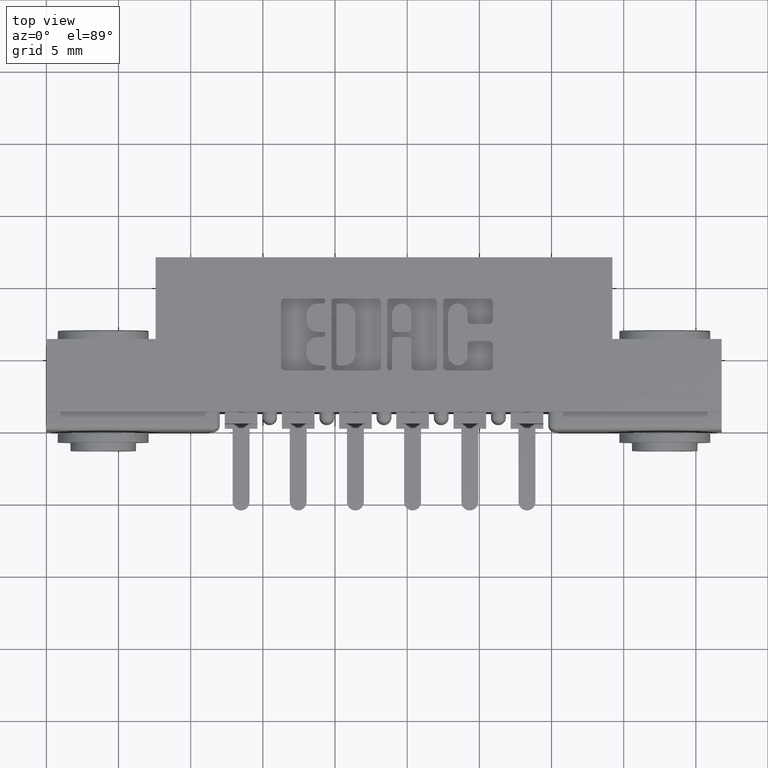
[diagram: clean part render]
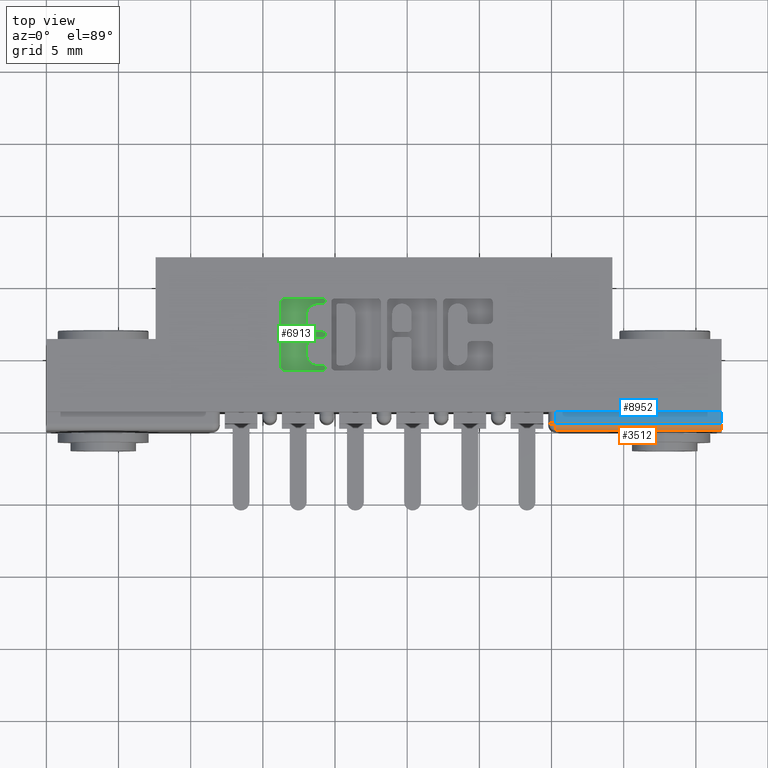
[diagram: same view with three faces highlighted in distinct colors, each labeled with its STEP entity id]
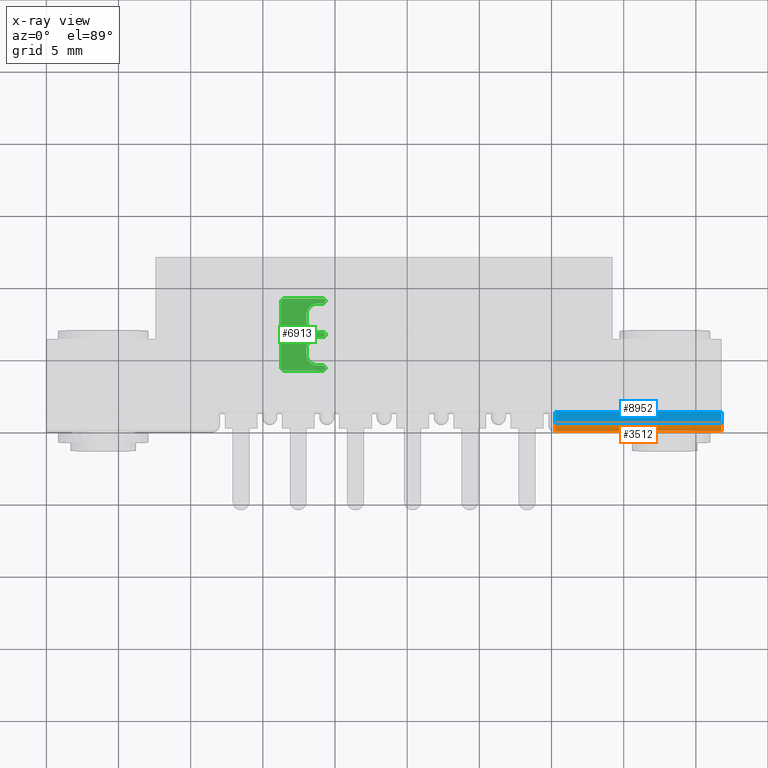
[diagram: x-ray of the same camera — body ghosted, the three highlighted faces saturated]
A machine part, top view with three faces highlighted in distinct colors.
The next image is the same camera in x-ray (body ghosted, the three faces saturated) — at least one of them is partly hidden behind the body in this view.
Their STEP definitions:

[orange] entity #3512 — the highlighted cylindrical surface (edge-blend (fillet) strip) has radius 0.508 mm, axis along (-1, 0, 0).
#127 = CARTESIAN_POINT ( 'NONE',  ( 1.842000000000000700, 0.02000000000000000000, -0.01000000000000006400 ) ) ;
#548 = VECTOR ( 'NONE', #11286, 39.37007874015748100 ) ;
#747 = EDGE_CURVE ( 'NONE', #11229, #2189, #5137, .T. ) ;
#853 = DIRECTION ( 'NONE',  ( 0.0000000000000000000, 0.0000000000000000000, 1.000000000000000000 ) ) ;
#1000 = EDGE_CURVE ( 'NONE', #2189, #2036, #9622, .T. ) ;
#1335 = ORIENTED_EDGE ( 'NONE', *, *, #747, .F. ) ;
#1402 = AXIS2_PLACEMENT_3D ( 'NONE', #7159, #5294, #7827 ) ;
#2029 = CARTESIAN_POINT ( 'NONE',  ( 1.389000000000000500, 0.0000000000000000000, -0.03000000000000008900 ) ) ;
#2036 = VERTEX_POINT ( 'NONE', #6874 ) ;
#2189 = VERTEX_POINT ( 'NONE', #127 ) ;
#2541 = CARTESIAN_POINT ( 'NONE',  ( 1.842000000000000700, 0.02000000000000000000, -0.03000000000000008900 ) ) ;
#2732 = ORIENTED_EDGE ( 'NONE', *, *, #6433, .F. ) ;
#2787 = ORIENTED_EDGE ( 'NONE', *, *, #6648, .F. ) ;
#2875 = CARTESIAN_POINT ( 'NONE',  ( 1.842000000000000700, 0.02000000000000000000, -0.01000000000000006400 ) ) ;
#2912 = LINE ( 'NONE', #4313, #548 ) ;
#3217 = VECTOR ( 'NONE', #7387, 39.37007874015748100 ) ;
#3445 = DIRECTION ( 'NONE',  ( 1.000000000000000000, -0.0000000000000000000, -0.0000000000000000000 ) ) ;
#3512 = ADVANCED_FACE ( 'NONE', ( #7361 ), #5463, .T. ) ;
#3636 = AXIS2_PLACEMENT_3D ( 'NONE', #7029, #9675, #853 ) ;
#3685 = ORIENTED_EDGE ( 'NONE', *, *, #1000, .F. ) ;
#4235 = VERTEX_POINT ( 'NONE', #2029 ) ;
#4313 = CARTESIAN_POINT ( 'NONE',  ( 0.0000000000000000000, 0.0000000000000000000, -0.03000000000000008900 ) ) ;
#4950 = EDGE_LOOP ( 'NONE', ( #3685, #1335, #2787, #2732 ) ) ;
#5137 = LINE ( 'NONE', #2875, #3217 ) ;
#5294 = DIRECTION ( 'NONE',  ( -1.000000000000000000, 0.0000000000000000000, 0.0000000000000000000 ) ) ;
#5463 = CYLINDRICAL_SURFACE ( 'NONE', #3636, 0.02000000000000000000 ) ;
#6433 = EDGE_CURVE ( 'NONE', #2036, #4235, #2912, .T. ) ;
#6613 = CIRCLE ( 'NONE', #1402, 0.02000000000000000000 ) ;
#6648 = EDGE_CURVE ( 'NONE', #4235, #11229, #6613, .T. ) ;
#6874 = CARTESIAN_POINT ( 'NONE',  ( 1.842000000000000700, 0.0000000000000000000, -0.03000000000000008900 ) ) ;
#7029 = CARTESIAN_POINT ( 'NONE',  ( 0.0000000000000000000, 0.02000000000000000000, -0.03000000000000008900 ) ) ;
#7159 = CARTESIAN_POINT ( 'NONE',  ( 1.389000000000000500, 0.02000000000000000000, -0.03000000000000008900 ) ) ;
#7361 = FACE_OUTER_BOUND ( 'NONE', #4950, .T. ) ;
#7387 = DIRECTION ( 'NONE',  ( 1.000000000000000000, -0.0000000000000000000, -0.0000000000000000000 ) ) ;
#7827 = DIRECTION ( 'NONE',  ( 0.0000000000000000000, 0.0000000000000000000, 1.000000000000000000 ) ) ;
#9423 = DIRECTION ( 'NONE',  ( 0.0000000000000000000, 0.0000000000000000000, 1.000000000000000000 ) ) ;
#9622 = CIRCLE ( 'NONE', #10492, 0.02000000000000000000 ) ;
#9634 = CARTESIAN_POINT ( 'NONE',  ( 1.389000000000000500, 0.02000000000000000000, -0.01000000000000006400 ) ) ;
#9675 = DIRECTION ( 'NONE',  ( -1.000000000000000000, 0.0000000000000000000, 0.0000000000000000000 ) ) ;
#10492 = AXIS2_PLACEMENT_3D ( 'NONE', #2541, #3445, #9423 ) ;
#11229 = VERTEX_POINT ( 'NONE', #9634 ) ;
#11286 = DIRECTION ( 'NONE',  ( -1.000000000000000000, 0.0000000000000000000, 0.0000000000000000000 ) ) ;

[blue] entity #8952 — the highlighted planar face has unit normal (0, 0, 1).
#15 = DIRECTION ( 'NONE',  ( -1.000000000000000000, 0.0000000000000000000, 0.0000000000000000000 ) ) ;
#127 = CARTESIAN_POINT ( 'NONE',  ( 1.842000000000000700, 0.02000000000000000000, -0.01000000000000006400 ) ) ;
#747 = EDGE_CURVE ( 'NONE', #11229, #2189, #5137, .T. ) ;
#1310 = ORIENTED_EDGE ( 'NONE', *, *, #9840, .T. ) ;
#1340 = DIRECTION ( 'NONE',  ( 0.0000000000000000000, -0.0000000000000000000, 1.000000000000000000 ) ) ;
#1381 = PLANE ( 'NONE',  #4052 ) ;
#1568 = CARTESIAN_POINT ( 'NONE',  ( 1.842000000000000700, 0.05099999999999999700, -0.01000000000000006400 ) ) ;
#2184 = EDGE_CURVE ( 'NONE', #5801, #8247, #3771, .T. ) ;
#2189 = VERTEX_POINT ( 'NONE', #127 ) ;
#2483 = DIRECTION ( 'NONE',  ( -0.0000000000000000000, -1.000000000000000000, -0.0000000000000000000 ) ) ;
#2606 = CARTESIAN_POINT ( 'NONE',  ( 1.842000000000000700, 0.05099999999999999700, -0.01000000000000006400 ) ) ;
#2875 = CARTESIAN_POINT ( 'NONE',  ( 1.842000000000000700, 0.02000000000000000000, -0.01000000000000006400 ) ) ;
#3217 = VECTOR ( 'NONE', #7387, 39.37007874015748100 ) ;
#3470 = EDGE_LOOP ( 'NONE', ( #1310, #9589, #7381, #10804 ) ) ;
#3771 = LINE ( 'NONE', #2606, #4481 ) ;
#4052 = AXIS2_PLACEMENT_3D ( 'NONE', #9271, #1340, #11152 ) ;
#4481 = VECTOR ( 'NONE', #15, 39.37007874015748100 ) ;
#4720 = FACE_OUTER_BOUND ( 'NONE', #3470, .T. ) ;
#5137 = LINE ( 'NONE', #2875, #3217 ) ;
#5687 = VECTOR ( 'NONE', #2483, 39.37007874015748100 ) ;
#5801 = VERTEX_POINT ( 'NONE', #11112 ) ;
#5903 = CARTESIAN_POINT ( 'NONE',  ( 1.389000000000000500, 0.05099999999999999700, -0.01000000000000006400 ) ) ;
#6213 = VECTOR ( 'NONE', #8936, 39.37007874015748100 ) ;
#7381 = ORIENTED_EDGE ( 'NONE', *, *, #9106, .F. ) ;
#7387 = DIRECTION ( 'NONE',  ( 1.000000000000000000, -0.0000000000000000000, -0.0000000000000000000 ) ) ;
#8247 = VERTEX_POINT ( 'NONE', #5903 ) ;
#8936 = DIRECTION ( 'NONE',  ( -0.0000000000000000000, -1.000000000000000000, -0.0000000000000000000 ) ) ;
#8952 = ADVANCED_FACE ( 'NONE', ( #4720 ), #1381, .T. ) ;
#9106 = EDGE_CURVE ( 'NONE', #5801, #2189, #10963, .T. ) ;
#9271 = CARTESIAN_POINT ( 'NONE',  ( 1.842000000000000700, 0.05099999999999999700, -0.01000000000000006400 ) ) ;
#9589 = ORIENTED_EDGE ( 'NONE', *, *, #747, .T. ) ;
#9634 = CARTESIAN_POINT ( 'NONE',  ( 1.389000000000000500, 0.02000000000000000000, -0.01000000000000006400 ) ) ;
#9840 = EDGE_CURVE ( 'NONE', #8247, #11229, #11090, .T. ) ;
#10344 = CARTESIAN_POINT ( 'NONE',  ( 1.389000000000000500, 0.05099999999999999700, -0.01000000000000006400 ) ) ;
#10804 = ORIENTED_EDGE ( 'NONE', *, *, #2184, .T. ) ;
#10963 = LINE ( 'NONE', #1568, #5687 ) ;
#11090 = LINE ( 'NONE', #10344, #6213 ) ;
#11112 = CARTESIAN_POINT ( 'NONE',  ( 1.842000000000000700, 0.05099999999999999700, -0.01000000000000006400 ) ) ;
#11152 = DIRECTION ( 'NONE',  ( 1.000000000000000000, 0.0000000000000000000, -0.0000000000000000000 ) ) ;
#11229 = VERTEX_POINT ( 'NONE', #9634 ) ;

[green] entity #6913 — the highlighted planar face has unit normal (0, 0, 1).
#96 = CARTESIAN_POINT ( 'NONE',  ( 0.7406370600051098700, 0.2089953808994903200, -0.01000000000000000000 ) ) ;
#246 = VERTEX_POINT ( 'NONE', #3906 ) ;
#272 = CIRCLE ( 'NONE', #10616, 0.009815670203822599700 ) ;
#366 = AXIS2_PLACEMENT_3D ( 'NONE', #4392, #4549, #4504 ) ;
#375 = ORIENTED_EDGE ( 'NONE', *, *, #2860, .T. ) ;
#404 = DIRECTION ( 'NONE',  ( 1.000000000000000000, 0.0000000000000000000, 0.0000000000000000000 ) ) ;
#408 = PLANE ( 'NONE',  #2621 ) ;
#505 = VERTEX_POINT ( 'NONE', #11314 ) ;
#523 = AXIS2_PLACEMENT_3D ( 'NONE', #4765, #10859, #5664 ) ;
#785 = ORIENTED_EDGE ( 'NONE', *, *, #6636, .T. ) ;
#798 = ORIENTED_EDGE ( 'NONE', *, *, #1897, .T. ) ;
#806 = CARTESIAN_POINT ( 'NONE',  ( 0.7092269153529280300, 0.2237188862052004700, -0.01000000000000000000 ) ) ;
#824 = ORIENTED_EDGE ( 'NONE', *, *, #4180, .F. ) ;
#866 = DIRECTION ( 'NONE',  ( 0.0000000000000000000, -1.000000000000000000, 0.0000000000000000000 ) ) ;
#1041 = DIRECTION ( 'NONE',  ( -0.0000000000000000000, 0.0000000000000000000, 1.000000000000000000 ) ) ;
#1116 = CARTESIAN_POINT ( 'NONE',  ( 0.7092269153529280300, 0.2089953808994903200, -0.01000000000000000000 ) ) ;
#1138 = VECTOR ( 'NONE', #7685, 39.37007874015748100 ) ;
#1213 = VERTEX_POINT ( 'NONE', #6260 ) ;
#1243 = AXIS2_PLACEMENT_3D ( 'NONE', #6664, #7607, #7530 ) ;
#1313 = ORIENTED_EDGE ( 'NONE', *, *, #3683, .T. ) ;
#1383 = DIRECTION ( 'NONE',  ( -0.0000000000000000000, 0.0000000000000000000, 1.000000000000000000 ) ) ;
#1479 = ORIENTED_EDGE ( 'NONE', *, *, #9224, .F. ) ;
#1482 = ORIENTED_EDGE ( 'NONE', *, *, #3904, .T. ) ;
#1576 = CIRCLE ( 'NONE', #5322, 0.006870969142662229500 ) ;
#1589 = VERTEX_POINT ( 'NONE', #3238 ) ;
#1614 = CARTESIAN_POINT ( 'NONE',  ( 0.7406370600050843400, 0.3002811137948582800, -0.01000000000000000000 ) ) ;
#1657 = DIRECTION ( 'NONE',  ( -0.0000000000000000000, 0.0000000000000000000, 1.000000000000000000 ) ) ;
#1696 = LINE ( 'NONE', #4921, #1706 ) ;
#1706 = VECTOR ( 'NONE', #10223, 39.37007874015748100 ) ;
#1824 = DIRECTION ( 'NONE',  ( -0.0000000000000000000, 0.0000000000000000000, 1.000000000000000000 ) ) ;
#1873 = CARTESIAN_POINT ( 'NONE',  ( 0.7406370600050843400, 0.2551290308573567800, -0.01000000000000000000 ) ) ;
#1897 = EDGE_CURVE ( 'NONE', #11228, #4088, #1696, .T. ) ;
#1973 = AXIS2_PLACEMENT_3D ( 'NONE', #4311, #3590, #10429 ) ;
#2097 = DIRECTION ( 'NONE',  ( 1.000000000000000000, 0.0000000000000000000, 0.0000000000000000000 ) ) ;
#2105 = CARTESIAN_POINT ( 'NONE',  ( 0.7406370600051098700, 0.1775852362473085400, -0.01000000000000000000 ) ) ;
#2187 = ORIENTED_EDGE ( 'NONE', *, *, #8501, .T. ) ;
#2210 = CARTESIAN_POINT ( 'NONE',  ( 0.6498421106199224800, 0.1736589681657899100, -0.01000000000000000000 ) ) ;
#2504 = EDGE_CURVE ( 'NONE', #4140, #5931, #6683, .T. ) ;
#2514 = EDGE_CURVE ( 'NONE', #3830, #1213, #1576, .T. ) ;
#2518 = DIRECTION ( 'NONE',  ( 1.000000000000000000, 0.0000000000000000000, 0.0000000000000000000 ) ) ;
#2621 = AXIS2_PLACEMENT_3D ( 'NONE', #9954, #5628, #2097 ) ;
#2653 = AXIS2_PLACEMENT_3D ( 'NONE', #8920, #1824, #8772 ) ;
#2758 = EDGE_CURVE ( 'NONE', #1213, #9507, #10521, .T. ) ;
#2796 = CARTESIAN_POINT ( 'NONE',  ( 0.6400264404161156700, 0.3503410318342100000, -0.01000000000000000000 ) ) ;
#2808 = CIRCLE ( 'NONE', #366, 0.03141014465215624000 ) ;
#2860 = EDGE_CURVE ( 'NONE', #9286, #9382, #9688, .T. ) ;
#2951 = AXIS2_PLACEMENT_3D ( 'NONE', #96, #4621, #8123 ) ;
#3044 = VERTEX_POINT ( 'NONE', #9839 ) ;
#3105 = DIRECTION ( 'NONE',  ( 1.000000000000000000, 0.0000000000000000000, 0.0000000000000000000 ) ) ;
#3232 = EDGE_CURVE ( 'NONE', #4672, #3514, #5192, .T. ) ;
#3238 = CARTESIAN_POINT ( 'NONE',  ( 0.7092269153529097100, 0.3002811137948582800, -0.01000000000000000000 ) ) ;
#3260 = AXIS2_PLACEMENT_3D ( 'NONE', #1614, #1657, #2518 ) ;
#3451 = VECTOR ( 'NONE', #9620, 39.37007874015748100 ) ;
#3514 = VERTEX_POINT ( 'NONE', #8687 ) ;
#3519 = CARTESIAN_POINT ( 'NONE',  ( 0.7541336065353102500, 0.2688709691426837700, -0.01000000000000000000 ) ) ;
#3590 = DIRECTION ( 'NONE',  ( -0.0000000000000000000, 0.0000000000000000000, 1.000000000000000000 ) ) ;
#3656 = CIRCLE ( 'NONE', #1243, 0.006870969142663458500 ) ;
#3683 = EDGE_CURVE ( 'NONE', #3921, #3879, #11305, .T. ) ;
#3725 = DIRECTION ( 'NONE',  ( 1.000000000000000000, 0.0000000000000000000, 0.0000000000000000000 ) ) ;
#3755 = CIRCLE ( 'NONE', #8090, 0.009815670203805798900 ) ;
#3770 = CARTESIAN_POINT ( 'NONE',  ( 0.6400264404161156700, 0.1736589681657899100, -0.01000000000000000000 ) ) ;
#3830 = VERTEX_POINT ( 'NONE', #5722 ) ;
#3845 = ORIENTED_EDGE ( 'NONE', *, *, #8563, .F. ) ;
#3879 = VERTEX_POINT ( 'NONE', #3970 ) ;
#3904 = EDGE_CURVE ( 'NONE', #4113, #4140, #3656, .T. ) ;
#3906 = CARTESIAN_POINT ( 'NONE',  ( 0.7541336064154146000, 0.1638432979619856000, -0.01000000000000000000 ) ) ;
#3921 = VERTEX_POINT ( 'NONE', #5026 ) ;
#3965 = CIRCLE ( 'NONE', #523, 0.006870969142663458500 ) ;
#3970 = CARTESIAN_POINT ( 'NONE',  ( 0.6498421106199383500, 0.3601567020380326800, -0.01000000000000000000 ) ) ;
#4048 = LINE ( 'NONE', #10287, #1138 ) ;
#4062 = EDGE_CURVE ( 'NONE', #505, #246, #4048, .T. ) ;
#4088 = VERTEX_POINT ( 'NONE', #806 ) ;
#4113 = VERTEX_POINT ( 'NONE', #6227 ) ;
#4140 = VERTEX_POINT ( 'NONE', #3519 ) ;
#4180 = EDGE_CURVE ( 'NONE', #4672, #3044, #10071, .T. ) ;
#4245 = VERTEX_POINT ( 'NONE', #1873 ) ;
#4311 = CARTESIAN_POINT ( 'NONE',  ( 0.7541336065353515500, 0.3532857328953861700, -0.01000000000000000000 ) ) ;
#4392 = CARTESIAN_POINT ( 'NONE',  ( 0.7406370600050843400, 0.2237188862052004700, -0.01000000000000000000 ) ) ;
#4504 = DIRECTION ( 'NONE',  ( 1.000000000000000000, 0.0000000000000000000, 0.0000000000000000000 ) ) ;
#4549 = DIRECTION ( 'NONE',  ( -0.0000000000000000000, 0.0000000000000000000, 1.000000000000000000 ) ) ;
#4571 = ORIENTED_EDGE ( 'NONE', *, *, #3232, .T. ) ;
#4621 = DIRECTION ( 'NONE',  ( -0.0000000000000000000, 0.0000000000000000000, 1.000000000000000000 ) ) ;
#4655 = ORIENTED_EDGE ( 'NONE', *, *, #7157, .T. ) ;
#4672 = VERTEX_POINT ( 'NONE', #6954 ) ;
#4692 = LINE ( 'NONE', #5250, #3451 ) ;
#4739 = EDGE_CURVE ( 'NONE', #4245, #4088, #2808, .T. ) ;
#4765 = CARTESIAN_POINT ( 'NONE',  ( 0.7541336065353102500, 0.2620000000000202700, -0.01000000000000000000 ) ) ;
#4921 = CARTESIAN_POINT ( 'NONE',  ( 0.7092269153529280300, 0.0000000000000000000, -0.01000000000000000000 ) ) ;
#4967 = CARTESIAN_POINT ( 'NONE',  ( 0.0000000000000000000, 0.3464147637527356100, -0.01000000000000000000 ) ) ;
#5026 = CARTESIAN_POINT ( 'NONE',  ( 0.7541336065353515500, 0.3601567020380326800, -0.01000000000000000000 ) ) ;
#5041 = EDGE_CURVE ( 'NONE', #9382, #505, #3755, .T. ) ;
#5103 = DIRECTION ( 'NONE',  ( -1.000000000000000000, 0.0000000000000000000, 0.0000000000000000000 ) ) ;
#5143 = CARTESIAN_POINT ( 'NONE',  ( -2.111779678676719100E-014, 0.1775852362472204700, -0.01000000000000000000 ) ) ;
#5192 = LINE ( 'NONE', #4967, #8440 ) ;
#5250 = CARTESIAN_POINT ( 'NONE',  ( 0.0000000000000000000, 0.2551290308573567800, -0.01000000000000000000 ) ) ;
#5322 = AXIS2_PLACEMENT_3D ( 'NONE', #11141, #5962, #7608 ) ;
#5617 = VECTOR ( 'NONE', #11223, 39.37007874015748100 ) ;
#5628 = DIRECTION ( 'NONE',  ( -0.0000000000000000000, 0.0000000000000000000, 1.000000000000000000 ) ) ;
#5664 = DIRECTION ( 'NONE',  ( 1.000000000000000000, 0.0000000000000000000, 0.0000000000000000000 ) ) ;
#5722 = CARTESIAN_POINT ( 'NONE',  ( 0.7610045756779980600, 0.1707142671046479000, -0.01000000000000000000 ) ) ;
#5883 = VECTOR ( 'NONE', #866, 39.37007874015748100 ) ;
#5931 = VERTEX_POINT ( 'NONE', #8712 ) ;
#5962 = DIRECTION ( 'NONE',  ( -0.0000000000000000000, 0.0000000000000000000, 1.000000000000000000 ) ) ;
#5969 = LINE ( 'NONE', #10730, #10961 ) ;
#5998 = ORIENTED_EDGE ( 'NONE', *, *, #2758, .T. ) ;
#6099 = CARTESIAN_POINT ( 'NONE',  ( 0.7610045756780000600, 0.3532857328953861700, -0.01000000000000000000 ) ) ;
#6227 = CARTESIAN_POINT ( 'NONE',  ( 0.7610045756779737500, 0.2620000000000202700, -0.01000000000000000000 ) ) ;
#6258 = DIRECTION ( 'NONE',  ( 1.000000000000000000, 0.0000000000000000000, 0.0000000000000000000 ) ) ;
#6260 = CARTESIAN_POINT ( 'NONE',  ( 0.7541336064154146000, 0.1775852362473101500, -0.01000000000000000000 ) ) ;
#6325 = EDGE_CURVE ( 'NONE', #3879, #9286, #272, .T. ) ;
#6495 = VERTEX_POINT ( 'NONE', #11167 ) ;
#6625 = ORIENTED_EDGE ( 'NONE', *, *, #8376, .T. ) ;
#6636 = EDGE_CURVE ( 'NONE', #4245, #6495, #4692, .T. ) ;
#6664 = CARTESIAN_POINT ( 'NONE',  ( 0.7541336065353102500, 0.2620000000000202700, -0.01000000000000000000 ) ) ;
#6683 = LINE ( 'NONE', #9355, #9401 ) ;
#6872 = CIRCLE ( 'NONE', #2653, 0.006870969142662229500 ) ;
#6886 = FACE_OUTER_BOUND ( 'NONE', #10073, .T. ) ;
#6913 = ADVANCED_FACE ( 'NONE', ( #6886 ), #408, .T. ) ;
#6954 = CARTESIAN_POINT ( 'NONE',  ( 0.7406370600051257500, 0.3464147637527356100, -0.01000000000000000000 ) ) ;
#7017 = ORIENTED_EDGE ( 'NONE', *, *, #4062, .T. ) ;
#7098 = ORIENTED_EDGE ( 'NONE', *, *, #10564, .T. ) ;
#7157 = EDGE_CURVE ( 'NONE', #246, #3830, #6872, .T. ) ;
#7286 = DIRECTION ( 'NONE',  ( -1.000000000000000000, 0.0000000000000000000, 0.0000000000000000000 ) ) ;
#7308 = ORIENTED_EDGE ( 'NONE', *, *, #10860, .T. ) ;
#7517 = CARTESIAN_POINT ( 'NONE',  ( 0.6498421106199383500, 0.3503410318342100000, -0.01000000000000000000 ) ) ;
#7530 = DIRECTION ( 'NONE',  ( 1.000000000000000000, 0.0000000000000000000, 0.0000000000000000000 ) ) ;
#7555 = ORIENTED_EDGE ( 'NONE', *, *, #6325, .T. ) ;
#7607 = DIRECTION ( 'NONE',  ( -0.0000000000000000000, 0.0000000000000000000, 1.000000000000000000 ) ) ;
#7608 = DIRECTION ( 'NONE',  ( 1.000000000000000000, 0.0000000000000000000, 0.0000000000000000000 ) ) ;
#7685 = DIRECTION ( 'NONE',  ( 1.000000000000000000, 6.548587621710595000E-015, 0.0000000000000000000 ) ) ;
#7911 = DIRECTION ( 'NONE',  ( -0.0000000000000000000, 0.0000000000000000000, 1.000000000000000000 ) ) ;
#8090 = AXIS2_PLACEMENT_3D ( 'NONE', #2210, #1383, #3105 ) ;
#8091 = AXIS2_PLACEMENT_3D ( 'NONE', #9726, #1041, #3725 ) ;
#8123 = DIRECTION ( 'NONE',  ( 1.000000000000000000, 0.0000000000000000000, 0.0000000000000000000 ) ) ;
#8370 = CIRCLE ( 'NONE', #3260, 0.03141014465217454400 ) ;
#8376 = EDGE_CURVE ( 'NONE', #9831, #3921, #10238, .T. ) ;
#8392 = DIRECTION ( 'NONE',  ( -0.0000000000000000000, 0.0000000000000000000, 1.000000000000000000 ) ) ;
#8440 = VECTOR ( 'NONE', #404, 39.37007874015748100 ) ;
#8501 = EDGE_CURVE ( 'NONE', #1589, #3044, #5969, .T. ) ;
#8563 = EDGE_CURVE ( 'NONE', #11228, #9507, #8703, .T. ) ;
#8687 = CARTESIAN_POINT ( 'NONE',  ( 0.7541336065353516600, 0.3464147637527356100, -0.01000000000000000000 ) ) ;
#8703 = CIRCLE ( 'NONE', #2951, 0.03141014465218178200 ) ;
#8712 = CARTESIAN_POINT ( 'NONE',  ( 0.7406370600050843400, 0.2688709691426837700, -0.01000000000000000000 ) ) ;
#8772 = DIRECTION ( 'NONE',  ( 1.000000000000000000, 0.0000000000000000000, 0.0000000000000000000 ) ) ;
#8816 = ORIENTED_EDGE ( 'NONE', *, *, #2504, .T. ) ;
#8847 = VECTOR ( 'NONE', #7286, 39.37007874015748100 ) ;
#8920 = CARTESIAN_POINT ( 'NONE',  ( 0.7541336065353357900, 0.1707142671046479000, -0.01000000000000000000 ) ) ;
#9095 = AXIS2_PLACEMENT_3D ( 'NONE', #9581, #7911, #6258 ) ;
#9136 = ORIENTED_EDGE ( 'NONE', *, *, #2514, .T. ) ;
#9224 = EDGE_CURVE ( 'NONE', #1589, #5931, #8370, .T. ) ;
#9286 = VERTEX_POINT ( 'NONE', #2796 ) ;
#9302 = DIRECTION ( 'NONE',  ( 1.000000000000000000, 0.0000000000000000000, 0.0000000000000000000 ) ) ;
#9355 = CARTESIAN_POINT ( 'NONE',  ( 0.0000000000000000000, 0.2688709691426837700, -0.01000000000000000000 ) ) ;
#9382 = VERTEX_POINT ( 'NONE', #3770 ) ;
#9401 = VECTOR ( 'NONE', #5103, 39.37007874015748100 ) ;
#9507 = VERTEX_POINT ( 'NONE', #2105 ) ;
#9581 = CARTESIAN_POINT ( 'NONE',  ( 0.7406370600051257500, 0.3150046191005197400, -0.01000000000000000000 ) ) ;
#9620 = DIRECTION ( 'NONE',  ( 1.000000000000000000, 0.0000000000000000000, 0.0000000000000000000 ) ) ;
#9688 = LINE ( 'NONE', #10469, #5883 ) ;
#9726 = CARTESIAN_POINT ( 'NONE',  ( 0.7541336065353515500, 0.3532857328953861700, -0.01000000000000000000 ) ) ;
#9729 = ORIENTED_EDGE ( 'NONE', *, *, #5041, .T. ) ;
#9774 = DIRECTION ( 'NONE',  ( 0.0000000000000000000, 1.000000000000000000, -0.0000000000000000000 ) ) ;
#9831 = VERTEX_POINT ( 'NONE', #6099 ) ;
#9839 = CARTESIAN_POINT ( 'NONE',  ( 0.7092269153529097100, 0.3150046191005197400, -0.01000000000000000000 ) ) ;
#9850 = CIRCLE ( 'NONE', #8091, 0.006870969142648570200 ) ;
#9954 = CARTESIAN_POINT ( 'NONE',  ( 0.0000000000000000000, 0.0000000000000000000, -0.01000000000000000000 ) ) ;
#10071 = CIRCLE ( 'NONE', #9095, 0.03141014465221592800 ) ;
#10073 = EDGE_LOOP ( 'NONE', ( #824, #4571, #7098, #6625, #1313, #7555, #375, #9729, #7017, #4655, #9136, #5998, #3845, #798, #11320, #785, #7308, #1482, #8816, #1479, #2187 ) ) ;
#10223 = DIRECTION ( 'NONE',  ( 0.0000000000000000000, 1.000000000000000000, -0.0000000000000000000 ) ) ;
#10238 = CIRCLE ( 'NONE', #1973, 0.006870969142648570200 ) ;
#10287 = CARTESIAN_POINT ( 'NONE',  ( -1.072942192934067400E-015, 0.1638432979619806600, -0.01000000000000000000 ) ) ;
#10429 = DIRECTION ( 'NONE',  ( 1.000000000000000000, 0.0000000000000000000, 0.0000000000000000000 ) ) ;
#10469 = CARTESIAN_POINT ( 'NONE',  ( 0.6400264404161156700, 0.0000000000000000000, -0.01000000000000000000 ) ) ;
#10521 = LINE ( 'NONE', #5143, #5617 ) ;
#10564 = EDGE_CURVE ( 'NONE', #3514, #9831, #9850, .T. ) ;
#10616 = AXIS2_PLACEMENT_3D ( 'NONE', #7517, #8392, #9302 ) ;
#10730 = CARTESIAN_POINT ( 'NONE',  ( 0.7092269153529097100, 0.0000000000000000000, -0.01000000000000000000 ) ) ;
#10816 = CARTESIAN_POINT ( 'NONE',  ( 0.0000000000000000000, 0.3601567020380326800, -0.01000000000000000000 ) ) ;
#10859 = DIRECTION ( 'NONE',  ( -0.0000000000000000000, 0.0000000000000000000, 1.000000000000000000 ) ) ;
#10860 = EDGE_CURVE ( 'NONE', #6495, #4113, #3965, .T. ) ;
#10961 = VECTOR ( 'NONE', #9774, 39.37007874015748100 ) ;
#11141 = CARTESIAN_POINT ( 'NONE',  ( 0.7541336065353357900, 0.1707142671046479000, -0.01000000000000000000 ) ) ;
#11167 = CARTESIAN_POINT ( 'NONE',  ( 0.7541336064153890700, 0.2551290308573567800, -0.01000000000000000000 ) ) ;
#11223 = DIRECTION ( 'NONE',  ( -1.000000000000000000, -1.189163988687022500E-013, 0.0000000000000000000 ) ) ;
#11228 = VERTEX_POINT ( 'NONE', #1116 ) ;
#11305 = LINE ( 'NONE', #10816, #8847 ) ;
#11314 = CARTESIAN_POINT ( 'NONE',  ( 0.6498421106199189200, 0.1638432979619849400, -0.01000000000000000000 ) ) ;
#11320 = ORIENTED_EDGE ( 'NONE', *, *, #4739, .F. ) ;